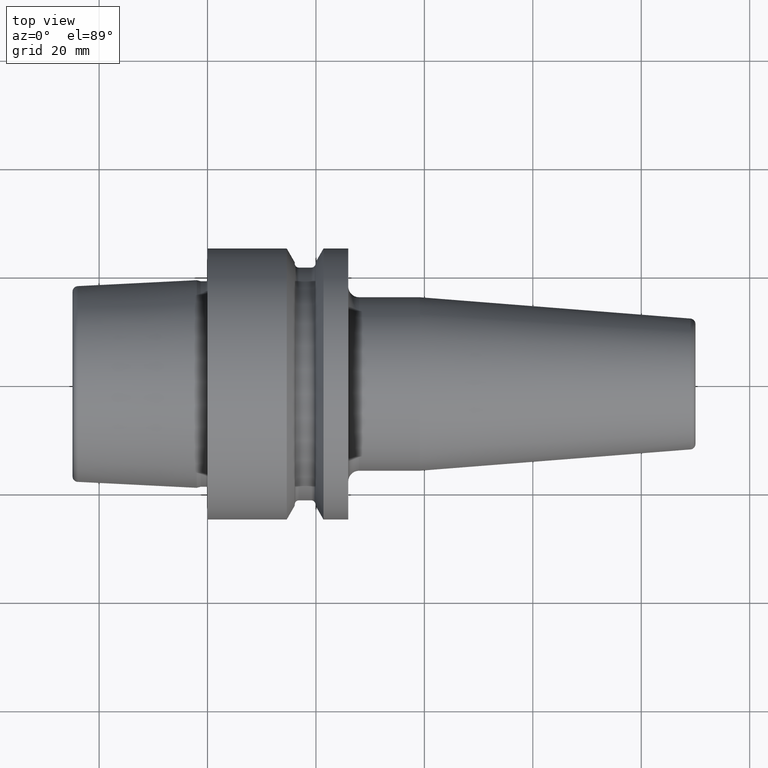
[diagram: clean part render]
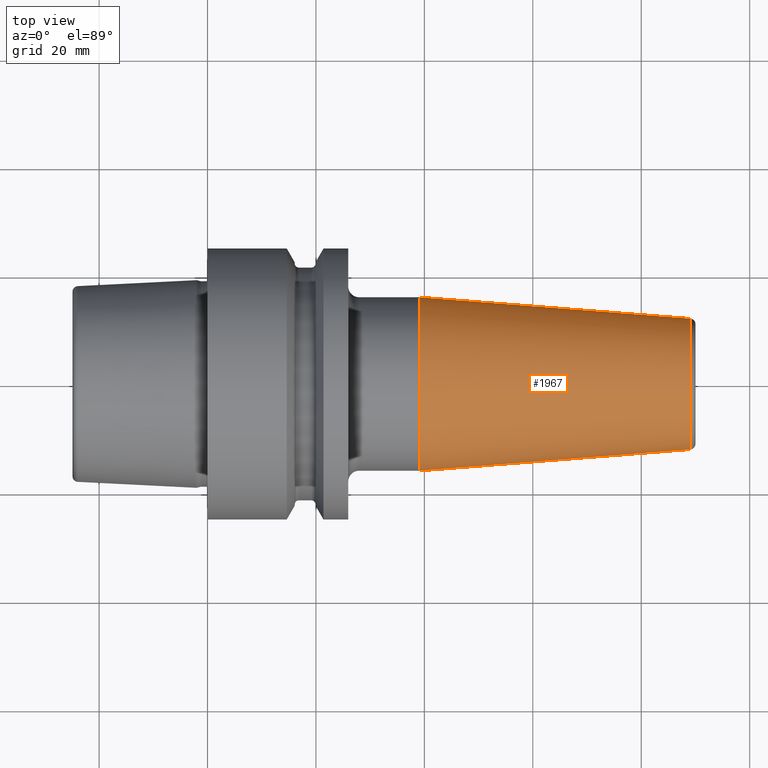
[diagram: same view with one face highlighted and labeled with its STEP entity id]
A machine part, top view. The second image highlights one B-rep face of the part: STEP entity #1967.
In plain terms, the highlighted conical surface has half-angle 4.5 deg.
Its self-contained STEP definition (entity closure, byte-faithful):
#647=CARTESIAN_POINT('',(3.917518105530E1,0.E0,0.E0));
#648=DIRECTION('',(1.E0,0.E0,0.E0));
#649=DIRECTION('',(0.E0,1.E0,0.E0));
#650=AXIS2_PLACEMENT_3D('',#647,#648,#649);
#675=DIRECTION('',(-9.969173337331E-1,7.845909572785E-2,1.087748963121E-14));
#676=VECTOR('',#675,5.005758888107E1);
#677=CARTESIAN_POINT('',(8.907845909573E1,1.207252684207E1,
-5.425414691387E-13));
#678=LINE('',#677,#676);
#679=DIRECTION('',(-9.969173337331E-1,-7.845909572785E-2,-1.087010584501E-14));
#680=VECTOR('',#679,5.005758888107E1);
#681=CARTESIAN_POINT('',(8.907845909573E1,-1.207252684207E1,
5.421718546048E-13));
#682=LINE('',#681,#680);
#693=CARTESIAN_POINT('',(8.907845909573E1,0.E0,0.E0));
#694=DIRECTION('',(-1.E0,0.E0,0.E0));
#695=DIRECTION('',(0.E0,-1.E0,0.E0));
#696=AXIS2_PLACEMENT_3D('',#693,#694,#695);
#888=CARTESIAN_POINT('',(3.917518105530E1,1.6E1,0.E0));
#889=CARTESIAN_POINT('',(3.917518105530E1,-1.6E1,0.E0));
#890=VERTEX_POINT('',#888);
#891=VERTEX_POINT('',#889);
#900=CARTESIAN_POINT('',(8.907845909573E1,1.207252684207E1,0.E0));
#901=CARTESIAN_POINT('',(8.907845909573E1,-1.207252684207E1,0.E0));
#902=VERTEX_POINT('',#900);
#903=VERTEX_POINT('',#901);
#1956=CARTESIAN_POINT('',(6.412682007551E1,0.E0,0.E0));
#1957=DIRECTION('',(-1.E0,0.E0,0.E0));
#1958=DIRECTION('',(0.E0,1.E0,0.E0));
#1959=AXIS2_PLACEMENT_3D('',#1956,#1957,#1958);
#1960=CONICAL_SURFACE('',#1959,1.403626342104E1,4.5E0);
#1961=ORIENTED_EDGE('',*,*,#1947,.F.);
#1962=ORIENTED_EDGE('',*,*,#1922,.T.);
#1963=ORIENTED_EDGE('',*,*,#1892,.F.);
#1964=ORIENTED_EDGE('',*,*,#1919,.F.);
#1965=EDGE_LOOP('',(#1961,#1962,#1963,#1964));
#1966=FACE_OUTER_BOUND('',#1965,.F.);
#1967=ADVANCED_FACE('',(#1966),#1960,.T.);
#651=CIRCLE('',#650,1.6E1);
#697=CIRCLE('',#696,1.207252684207E1);
#1892=EDGE_CURVE('',#890,#891,#651,.T.);
#1919=EDGE_CURVE('',#902,#890,#678,.T.);
#1922=EDGE_CURVE('',#903,#891,#682,.T.);
#1947=EDGE_CURVE('',#903,#902,#697,.T.);